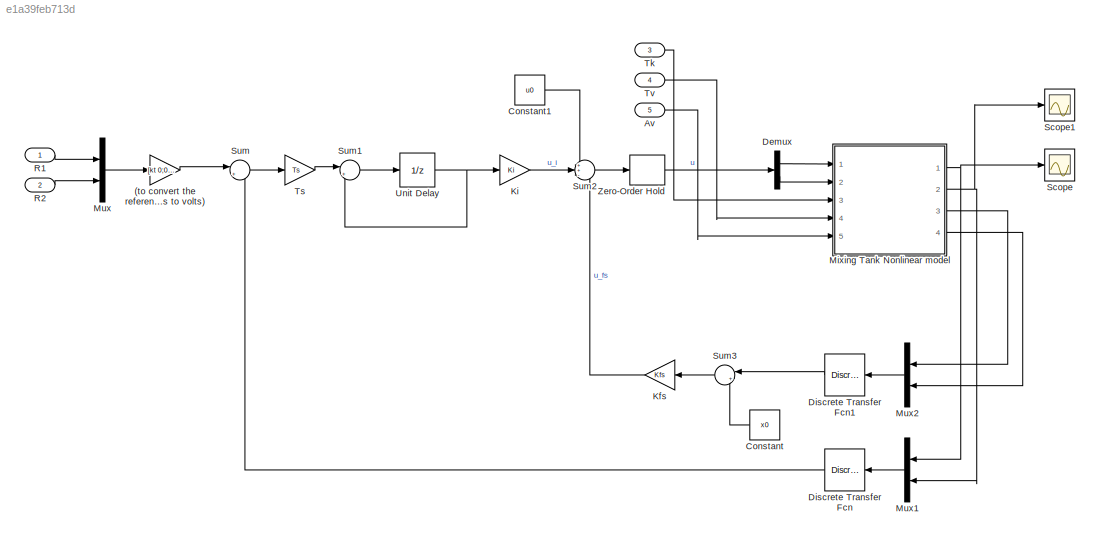
MODEL slx_e1a39feb713d
KIND model
CONFIG AbsTol = auto
CONFIG EnableMultiTasking = off
CONFIG FixedStep = STEP_SIZE
CONFIG MaxStep = auto
CONFIG MinStep = auto
CONFIG RelTol = 1e-3
CONFIG SampleTimeConstraint = Unconstrained
CONFIG Solver = ode4
CONFIG SolverName = ode4
CONFIG StartTime = 0.0
CONFIG StopTime = SIM_TIME
BLOCK [Gain] (to convert the reference from meters and degree Celsius to volts)
  Gain = [kt 0;0 kh]
  Multiplication = Matrix(K*u) (u vector)
  OutDataTypeStr = Inherit: Inherit via internal rule
  ParamDataTypeStr = Inherit: Inherit via internal rule
  SaturateOnIntegerOverflow = off
BLOCK [Inport] Av
  IconDisplay = Port number
  Port = 5
BLOCK [Constant] Constant
  Value = x0
BLOCK [Constant] Constant1
  Value = u0
BLOCK [Demux] Demux
  DisplayOption = bar
  Outputs = 2
  Ports = [1, 2]
BLOCK [DiscreteTransferFcn] Discrete Transfer Fcn
  Denominator = [1]
  InputPortMap = u0
  Ports = [1, 1]
  SampleTime = Ts
BLOCK [DiscreteTransferFcn] Discrete Transfer Fcn1
  Denominator = [1]
  InputPortMap = u0
  Ports = [1, 1]
  SampleTime = Ts
BLOCK [Gain] Kfs
  Gain = Kfs
  Multiplication = Matrix(K*u) (u vector)
  OutDataTypeStr = Inherit: Inherit via internal rule
  ParamDataTypeStr = Inherit: Inherit via internal rule
  SaturateOnIntegerOverflow = off
BLOCK [Gain] Ki
  Gain = Ki
  Multiplication = Matrix(K*u) (u vector)
  OutDataTypeStr = Inherit: Inherit via internal rule
  ParamDataTypeStr = Inherit: Inherit via internal rule
  SaturateOnIntegerOverflow = off
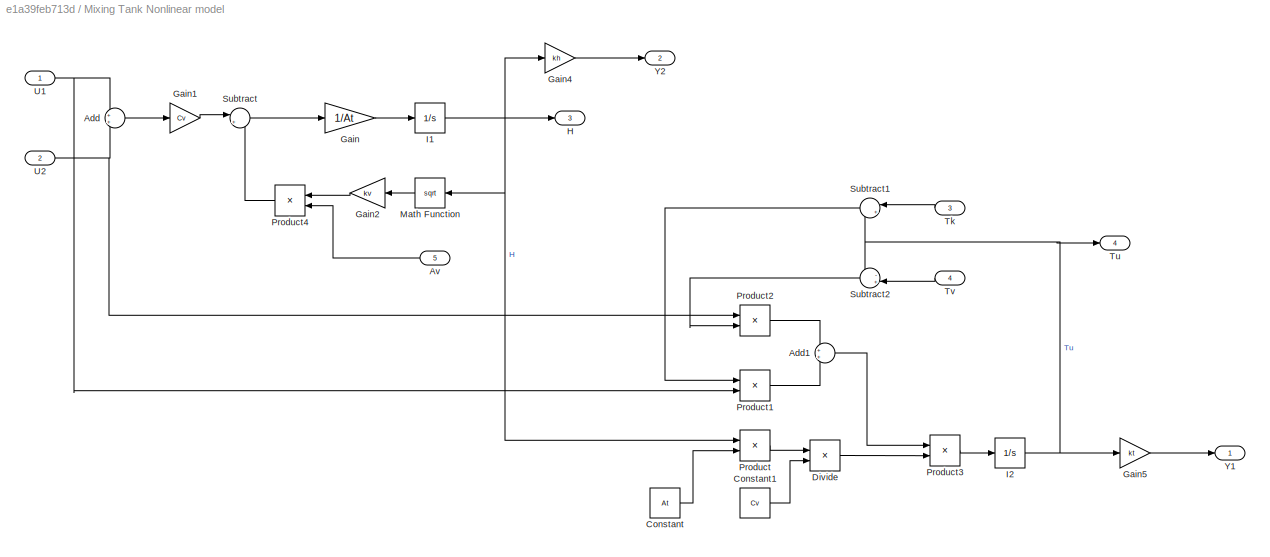
BLOCK [SubSystem] Mixing Tank Nonlinear model
  Ports = [5, 4]
  RequestExecContextInheritance = off
  Variant = off
BLOCK [Sum] Mixing Tank Nonlinear model/Add
  IconShape = round
  InputSameDT = off
  OutDataTypeStr = Inherit: Inherit via internal rule
  Ports = [2, 1]
  SaturateOnIntegerOverflow = off
BLOCK [Sum] Mixing Tank Nonlinear model/Add1
  IconShape = round
  InputSameDT = off
  OutDataTypeStr = Inherit: Inherit via internal rule
  Ports = [2, 1]
  SaturateOnIntegerOverflow = off
BLOCK [Inport] Mixing Tank Nonlinear model/Av
  IconDisplay = Port number
  Port = 5
BLOCK [Constant] Mixing Tank Nonlinear model/Constant
  Value = At
BLOCK [Constant] Mixing Tank Nonlinear model/Constant1
  Value = Cv
BLOCK [Product] Mixing Tank Nonlinear model/Divide
  InputSameDT = off
  Inputs = /*
  OutDataTypeStr = Inherit: Inherit via internal rule
  Ports = [2, 1]
  RndMeth = Floor
  SaturateOnIntegerOverflow = off
BLOCK [Gain] Mixing Tank Nonlinear model/Gain
  Gain = 1/At
  OutDataTypeStr = Inherit: Inherit via internal rule
  ParamDataTypeStr = Inherit: Inherit via internal rule
  SaturateOnIntegerOverflow = off
BLOCK [Gain] Mixing Tank Nonlinear model/Gain1
  Gain = Cv
  OutDataTypeStr = Inherit: Inherit via internal rule
  ParamDataTypeStr = Inherit: Inherit via internal rule
  SaturateOnIntegerOverflow = off
BLOCK [Gain] Mixing Tank Nonlinear model/Gain2
  Gain = kv
  OutDataTypeStr = Inherit: Inherit via internal rule
  ParamDataTypeStr = Inherit: Inherit via internal rule
  SaturateOnIntegerOverflow = off
BLOCK [Gain] Mixing Tank Nonlinear model/Gain4
  Gain = kh
  OutDataTypeStr = Inherit: Inherit via internal rule
  ParamDataTypeStr = Inherit: Inherit via internal rule
  SaturateOnIntegerOverflow = off
BLOCK [Gain] Mixing Tank Nonlinear model/Gain5
  Gain = kt
  OutDataTypeStr = Inherit: Inherit via internal rule
  ParamDataTypeStr = Inherit: Inherit via internal rule
  SaturateOnIntegerOverflow = off
BLOCK [Outport] Mixing Tank Nonlinear model/H
  IconDisplay = Port number
  Port = 3
BLOCK [Integrator] Mixing Tank Nonlinear model/I1
  InitialCondition = x0(1)
  LimitOutput = on
  LowerSaturationLimit = 0
  Ports = [1, 1]
  Priority = 1
BLOCK [Integrator] Mixing Tank Nonlinear model/I2
  InitialCondition = x0(2)
  Ports = [1, 1]
  Priority = 2
BLOCK [Math] Mixing Tank Nonlinear model/Math Function
  Operator = sqrt
  Ports = [1, 1]
BLOCK [Product] Mixing Tank Nonlinear model/Product
  InputSameDT = off
  OutDataTypeStr = Inherit: Inherit via internal rule
  Ports = [2, 1]
  SaturateOnIntegerOverflow = off
BLOCK [Product] Mixing Tank Nonlinear model/Product1
  InputSameDT = off
  OutDataTypeStr = Inherit: Inherit via internal rule
  Ports = [2, 1]
  SaturateOnIntegerOverflow = off
BLOCK [Product] Mixing Tank Nonlinear model/Product2
  InputSameDT = off
  OutDataTypeStr = Inherit: Inherit via internal rule
  Ports = [2, 1]
  SaturateOnIntegerOverflow = off
BLOCK [Product] Mixing Tank Nonlinear model/Product3
  InputSameDT = off
  OutDataTypeStr = Inherit: Inherit via internal rule
  Ports = [2, 1]
  SaturateOnIntegerOverflow = off
BLOCK [Product] Mixing Tank Nonlinear model/Product4
  InputSameDT = off
  OutDataTypeStr = Inherit: Inherit via internal rule
  Ports = [2, 1]
  SaturateOnIntegerOverflow = off
BLOCK [Sum] Mixing Tank Nonlinear model/Subtract
  IconShape = round
  InputSameDT = off
  Inputs = |+-
  OutDataTypeStr = Inherit: Inherit via internal rule
  Ports = [2, 1]
  SaturateOnIntegerOverflow = off
BLOCK [Sum] Mixing Tank Nonlinear model/Subtract1
  IconShape = round
  InputSameDT = off
  Inputs = |+-
  OutDataTypeStr = Inherit: Inherit via internal rule
  Ports = [2, 1]
  SaturateOnIntegerOverflow = off
BLOCK [Sum] Mixing Tank Nonlinear model/Subtract2
  IconShape = round
  InputSameDT = off
  Inputs = -+|
  OutDataTypeStr = Inherit: Inherit via internal rule
  Ports = [2, 1]
  SaturateOnIntegerOverflow = off
BLOCK [Inport] Mixing Tank Nonlinear model/Tk
  IconDisplay = Port number
  Port = 3
BLOCK [Outport] Mixing Tank Nonlinear model/Tu
  IconDisplay = Port number
  Port = 4
BLOCK [Inport] Mixing Tank Nonlinear model/Tv
  IconDisplay = Port number
  Port = 4
BLOCK [Inport] Mixing Tank Nonlinear model/U1
  IconDisplay = Port number
BLOCK [Inport] Mixing Tank Nonlinear model/U2
  IconDisplay = Port number
  Port = 2
BLOCK [Outport] Mixing Tank Nonlinear model/Y1
  IconDisplay = Port number
BLOCK [Outport] Mixing Tank Nonlinear model/Y2
  IconDisplay = Port number
  Port = 2
BLOCK [Mux] Mux
  DisplayOption = bar
  Inputs = 2
  Ports = [2, 1]
BLOCK [Mux] Mux1
  DisplayOption = bar
  Inputs = 2
  Ports = [2, 1]
BLOCK [Mux] Mux2
  DisplayOption = bar
  Inputs = 2
  Ports = [2, 1]
BLOCK [Inport] R1
  IconDisplay = Port number
BLOCK [Inport] R2
  IconDisplay = Port number
  Port = 2
BLOCK [Scope] Scope
  NumInputPorts = 1
  Ports = [1]
  ScopeSpecificationString = Simulink.scopes.TimeScopeBlockCfg('CurrentConfiguration', extmgr.ConfigurationSet(extmgr.Configuration('Core','General UI',true),extmgr.Configuration('Core','Source UI',true),extmgr.Configuration('Sources','WiredSimulink',true),extmgr.Configuration('Visuals','Time Domain',true,'SerializedDisplays',{struct('MinYLimReal','3.75984','MaxYLimReal','3.83698','YLabelReal','','MinYLimMag','3.75984','MaxYL...<+1347ch>
BLOCK [Scope] Scope1
  NumInputPorts = 1
  Ports = [1]
  ScopeSpecificationString = Simulink.scopes.TimeScopeBlockCfg('CurrentConfiguration', extmgr.ConfigurationSet(extmgr.Configuration('Core','General UI',true),extmgr.Configuration('Core','Source UI',true),extmgr.Configuration('Sources','WiredSimulink',true,'DataLoggingVariableName','ScopeData1'),extmgr.Configuration('Visuals','Time Domain',true,'SerializedDisplays',{struct('MinYLimReal','3.83162','MaxYLimReal','4.17148','YLabe...<+1386ch>
BLOCK [Sum] Sum
  IconShape = round
  InputSameDT = off
  Inputs = |+-
  OutDataTypeStr = Inherit: Inherit via internal rule
  Ports = [2, 1]
  SaturateOnIntegerOverflow = off
BLOCK [Sum] Sum1
  IconShape = round
  InputSameDT = off
  Inputs = |++
  OutDataTypeStr = Inherit: Inherit via internal rule
  Ports = [2, 1]
  SaturateOnIntegerOverflow = off
BLOCK [Sum] Sum2
  IconShape = round
  InputSameDT = off
  Inputs = ++-
  OutDataTypeStr = Inherit: Inherit via internal rule
  Ports = [3, 1]
  SaturateOnIntegerOverflow = off
BLOCK [Sum] Sum3
  IconShape = round
  InputSameDT = off
  Inputs = |+-
  OutDataTypeStr = Inherit: Inherit via internal rule
  Ports = [2, 1]
  SaturateOnIntegerOverflow = off
BLOCK [Inport] Tk
  IconDisplay = Port number
  Port = 3
BLOCK [Gain] Ts
  Gain = Ts
  OutDataTypeStr = Inherit: Inherit via internal rule
  ParamDataTypeStr = Inherit: Inherit via internal rule
  SaturateOnIntegerOverflow = off
BLOCK [Inport] Tv
  IconDisplay = Port number
  Port = 4
BLOCK [UnitDelay] Unit Delay
  InitialCondition = xi0
  InputProcessing = Elements as channels (sample based)
  Priority = 3
  SampleTime = Ts
BLOCK [ZeroOrderHold] Zero-Order Hold
  SampleTime = Ts
LINE (to convert the reference from meters and degree Celsius to volts):1 -> Sum:1
LINE Av:1 -> Mixing Tank Nonlinear model:5
LINE Constant1:1 -> Sum2:1
LINE Constant:1 -> Sum3:2
LINE Demux:1 -> Mixing Tank Nonlinear model:1
LINE Demux:2 -> Mixing Tank Nonlinear model:2
LINE Discrete Transfer Fcn1:1 -> Sum3:1
LINE Discrete Transfer Fcn:1 -> Sum:2
LINE Kfs:1 -> Sum2:3
LINE Ki:1 -> Sum2:2
LINE Mixing Tank Nonlinear model/Add1:1 -> Mixing Tank Nonlinear model/Product3:1
LINE Mixing Tank Nonlinear model/Add:1 -> Mixing Tank Nonlinear model/Gain1:1
LINE Mixing Tank Nonlinear model/Av:1 -> Mixing Tank Nonlinear model/Product4:2
LINE Mixing Tank Nonlinear model/Constant1:1 -> Mixing Tank Nonlinear model/Divide:2
LINE Mixing Tank Nonlinear model/Constant:1 -> Mixing Tank Nonlinear model/Product:2
LINE Mixing Tank Nonlinear model/Divide:1 -> Mixing Tank Nonlinear model/Product3:2
LINE Mixing Tank Nonlinear model/Gain1:1 -> Mixing Tank Nonlinear model/Subtract:1
LINE Mixing Tank Nonlinear model/Gain2:1 -> Mixing Tank Nonlinear model/Product4:1
LINE Mixing Tank Nonlinear model/Gain4:1 -> Mixing Tank Nonlinear model/Y2:1
LINE Mixing Tank Nonlinear model/Gain5:1 -> Mixing Tank Nonlinear model/Y1:1
LINE Mixing Tank Nonlinear model/Gain:1 -> Mixing Tank Nonlinear model/I1:1
NET Mixing Tank Nonlinear model/I1:1 -> Mixing Tank Nonlinear model/Gain4:1, Mixing Tank Nonlinear model/H:1, Mixing Tank Nonlinear model/Math Function:1, Mixing Tank Nonlinear model/Product:1
NET Mixing Tank Nonlinear model/I2:1 -> Mixing Tank Nonlinear model/Gain5:1, Mixing Tank Nonlinear model/Subtract1:2, Mixing Tank Nonlinear model/Subtract2:1, Mixing Tank Nonlinear model/Tu:1
LINE Mixing Tank Nonlinear model/Math Function:1 -> Mixing Tank Nonlinear model/Gain2:1
LINE Mixing Tank Nonlinear model/Product1:1 -> Mixing Tank Nonlinear model/Add1:2
LINE Mixing Tank Nonlinear model/Product2:1 -> Mixing Tank Nonlinear model/Add1:1
LINE Mixing Tank Nonlinear model/Product3:1 -> Mixing Tank Nonlinear model/I2:1
LINE Mixing Tank Nonlinear model/Product4:1 -> Mixing Tank Nonlinear model/Subtract:2
LINE Mixing Tank Nonlinear model/Product:1 -> Mixing Tank Nonlinear model/Divide:1
LINE Mixing Tank Nonlinear model/Subtract1:1 -> Mixing Tank Nonlinear model/Product1:1
LINE Mixing Tank Nonlinear model/Subtract2:1 -> Mixing Tank Nonlinear model/Product2:2
LINE Mixing Tank Nonlinear model/Subtract:1 -> Mixing Tank Nonlinear model/Gain:1
LINE Mixing Tank Nonlinear model/Tk:1 -> Mixing Tank Nonlinear model/Subtract1:1
LINE Mixing Tank Nonlinear model/Tv:1 -> Mixing Tank Nonlinear model/Subtract2:2
NET Mixing Tank Nonlinear model/U1:1 -> Mixing Tank Nonlinear model/Add:1, Mixing Tank Nonlinear model/Product1:2
NET Mixing Tank Nonlinear model/U2:1 -> Mixing Tank Nonlinear model/Add:2, Mixing Tank Nonlinear model/Product2:1
NET Mixing Tank Nonlinear model:1 -> Mux1:1, Scope:1
NET Mixing Tank Nonlinear model:2 -> Mux1:2, Scope1:1
LINE Mixing Tank Nonlinear model:3 -> Mux2:1
LINE Mixing Tank Nonlinear model:4 -> Mux2:2
LINE Mux1:1 -> Discrete Transfer Fcn:1
LINE Mux2:1 -> Discrete Transfer Fcn1:1
LINE Mux:1 -> (to convert the reference from meters and degree Celsius to volts):1
LINE R1:1 -> Mux:1
LINE R2:1 -> Mux:2
LINE Sum1:1 -> Unit Delay:1
LINE Sum2:1 -> Zero-Order Hold:1
LINE Sum3:1 -> Kfs:1
LINE Sum:1 -> Ts:1
LINE Tk:1 -> Mixing Tank Nonlinear model:3
LINE Ts:1 -> Sum1:1
LINE Tv:1 -> Mixing Tank Nonlinear model:4
NET Unit Delay:1 -> Ki:1, Sum1:2
LINE Zero-Order Hold:1 -> Demux:1
note: NET lines group one-source signal fan-out (src -> all destinations, sorted); 1:1 wires keep LINE
